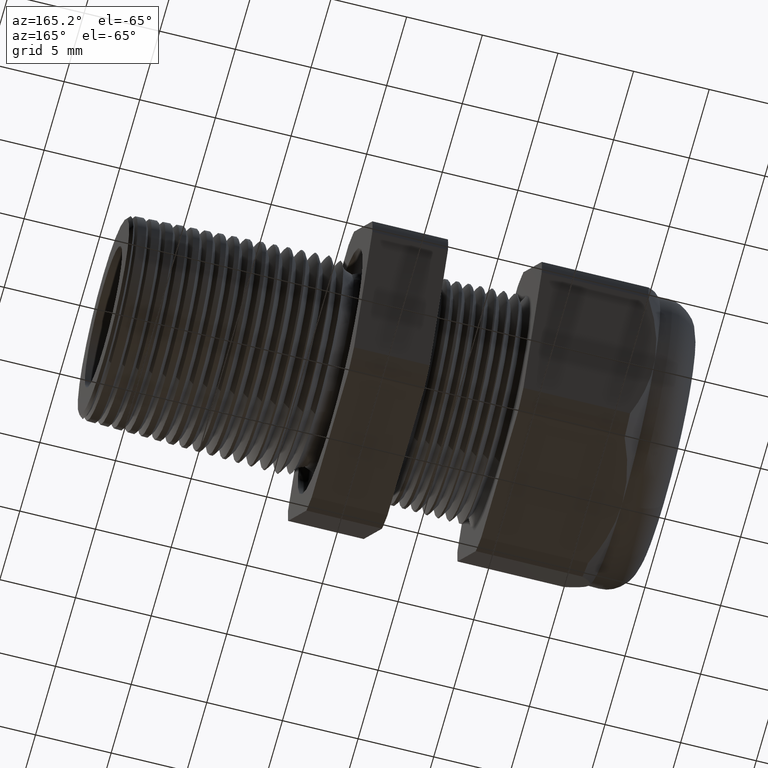
[diagram: clean part render]
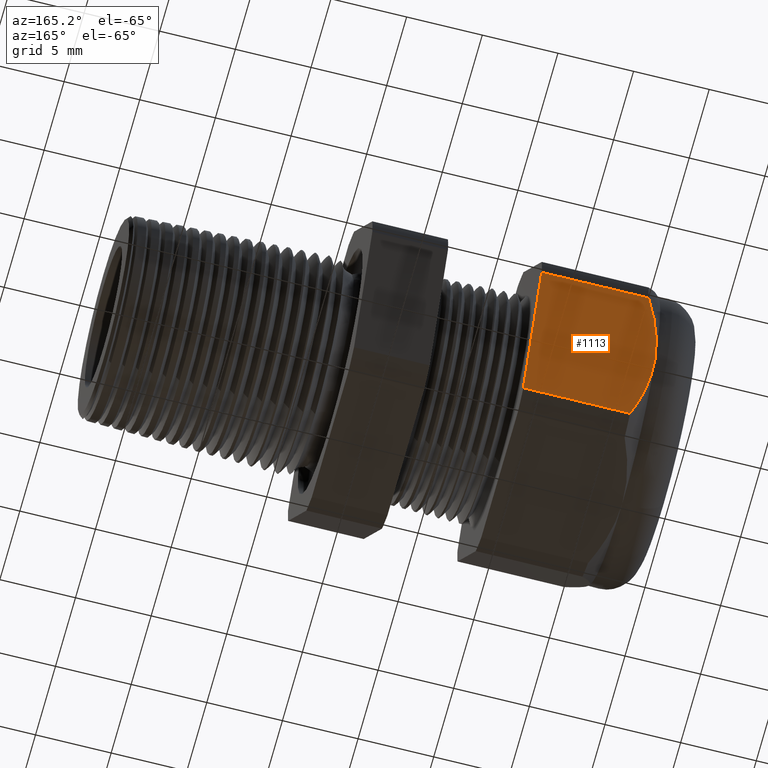
[diagram: same view with one face highlighted and labeled with its STEP entity id]
A machine part, auxiliary view. The second image highlights one B-rep face of the part: STEP entity #1113.
In plain terms, the highlighted planar face has unit normal (0, 0.866, -0.5).
Its self-contained STEP definition (entity closure, byte-faithful):
#678 = VERTEX_POINT ( 'NONE', #2939 ) ;
#1017 = EDGE_CURVE ( 'NONE', #1018, #1019, #3553, .T. ) ;
#1018 = VERTEX_POINT ( 'NONE', #3609 ) ;
#1019 = VERTEX_POINT ( 'NONE', #3608 ) ;
#1113 = ADVANCED_FACE ( 'NONE', ( #3813 ), #3812, .T. ) ;
#1114 = EDGE_LOOP ( 'NONE', ( #1115, #1116, #1118, #1120, #1121 ) ) ;
#1115 = ORIENTED_EDGE ( 'NONE', *, *, #1137, .T. ) ;
#1116 = ORIENTED_EDGE ( 'NONE', *, *, #1117, .T. ) ;
#1117 = EDGE_CURVE ( 'NONE', #1135, #678, #3807, .T. ) ;
#1118 = ORIENTED_EDGE ( 'NONE', *, *, #1119, .T. ) ;
#1119 = EDGE_CURVE ( 'NONE', #678, #1019, #3798, .T. ) ;
#1120 = ORIENTED_EDGE ( 'NONE', *, *, #1017, .F. ) ;
#1121 = ORIENTED_EDGE ( 'NONE', *, *, #1181, .F. ) ;
#1135 = VERTEX_POINT ( 'NONE', #3818 ) ;
#1137 = EDGE_CURVE ( 'NONE', #1138, #1135, #3817, .T. ) ;
#1138 = VERTEX_POINT ( 'NONE', #3871 ) ;
#1181 = EDGE_CURVE ( 'NONE', #1138, #1018, #3911, .T. ) ;
#2939 = CARTESIAN_POINT ( 'NONE',  ( -1.069763779527559200, 0.3247595264191646700, -0.1875000000000001100 ) ) ;
#3547 = VECTOR ( 'NONE', #3610, 39.37007874015748100 ) ;
#3548 = CARTESIAN_POINT ( 'NONE',  ( 0.2800000000000000300, 0.4150909474475088000, -0.03104138925901223100 ) ) ;
#3553 = LINE ( 'NONE', #3548, #3547 ) ;
#3608 = CARTESIAN_POINT ( 'NONE',  ( -1.028513779527559200, 0.4150909474475088000, -0.03104138925901223100 ) ) ;
#3609 = CARTESIAN_POINT ( 'NONE',  ( -0.7508661417322833900, 0.4150909474475088000, -0.03104138925901223400 ) ) ;
#3610 = DIRECTION ( 'NONE',  ( -1.000000000000000000, 0.0000000000000000000, 0.0000000000000000000 ) ) ;
#3792 = CARTESIAN_POINT ( 'NONE',  ( -1.028513779527559200, 0.4150909474475088000, -0.03104138925901223100 ) ) ;
#3793 = CARTESIAN_POINT ( 'NONE',  ( -1.041003202145915700, 0.4007030353962316400, -0.05596198394665684300 ) ) ;
#3794 = CARTESIAN_POINT ( 'NONE',  ( -1.051459219999150200, 0.3858321107701056500, -0.08171918095463424900 ) ) ;
#3795 = CARTESIAN_POINT ( 'NONE',  ( -1.065817769005222800, 0.3557072427410923900, -0.1338969829521926800 ) ) ;
#3796 = CARTESIAN_POINT ( 'NONE',  ( -1.069763779527558500, 0.3403893008356695900, -0.1604284365997730400 ) ) ;
#3797 = CARTESIAN_POINT ( 'NONE',  ( -1.069763779527559200, 0.3247595264191646700, -0.1875000000000001100 ) ) ;
#3798 = B_SPLINE_CURVE_WITH_KNOTS ( 'NONE', 3,
 ( #3797, #3796, #3795, #3794, #3793, #3792 ),
 .UNSPECIFIED., .F., .F.,
 ( 4, 2, 4 ),
 ( 0.004709976344604661000, 0.007063225540252132300, 0.009416474735899604500 ),
 .UNSPECIFIED. ) ;
#3799 = CARTESIAN_POINT ( 'NONE',  ( -1.069763779527559200, 0.3247595264191646700, -0.1875000000000001100 ) ) ;
#3800 = CARTESIAN_POINT ( 'NONE',  ( -1.069763779527559000, 0.3169392765875834700, -0.2010450700361805500 ) ) ;
#3801 = CARTESIAN_POINT ( 'NONE',  ( -1.068759730589041300, 0.3090355397383388000, -0.2147347438287267000 ) ) ;
#3802 = CARTESIAN_POINT ( 'NONE',  ( -1.064926254644834600, 0.2935887246993245700, -0.2414894122914183500 ) ) ;
#3803 = CARTESIAN_POINT ( 'NONE',  ( -1.062104445229485000, 0.2859780998530065400, -0.2546714012025871900 ) ) ;
#3804 = CARTESIAN_POINT ( 'NONE',  ( -1.051298346633053900, 0.2634379006963006300, -0.2937121713547227700 ) ) ;
#3805 = CARTESIAN_POINT ( 'NONE',  ( -1.040987746498826200, 0.2487982124163725400, -0.3190688552625289300 ) ) ;
#3806 = CARTESIAN_POINT ( 'NONE',  ( -1.028513779527559000, 0.2344281053908203200, -0.3439586107409879900 ) ) ;
#3807 = B_SPLINE_CURVE_WITH_KNOTS ( 'NONE', 3,
 ( #3806, #3805, #3804, #3803, #3802, #3801, #3800, #3799 ),
 .UNSPECIFIED., .F., .F.,
 ( 4, 2, 2, 4 ),
 ( 2.483253706007067000E-007, 0.002355112334987630900, 0.003532544339796146000, 0.004709976344604661000 ),
 .UNSPECIFIED. ) ;
#3808 = DIRECTION ( 'NONE',  ( 0.0000000000000000000, 0.5000000000000000000, 0.8660254037844386000 ) ) ;
#3809 = DIRECTION ( 'NONE',  ( 0.0000000000000000000, 0.8660254037844387100, -0.5000000000000001100 ) ) ;
#3810 = CARTESIAN_POINT ( 'NONE',  ( 0.2800000000000000300, 0.4150909474475088000, -0.03104138925901223100 ) ) ;
#3811 = AXIS2_PLACEMENT_3D ( 'NONE', #3810, #3809, #3808 ) ;
#3812 = PLANE ( 'NONE',  #3811 ) ;
#3813 = FACE_OUTER_BOUND ( 'NONE', #1114, .T. ) ;
#3814 = DIRECTION ( 'NONE',  ( -1.000000000000000000, 0.0000000000000000000, 0.0000000000000000000 ) ) ;
#3815 = VECTOR ( 'NONE', #3814, 39.37007874015748100 ) ;
#3816 = CARTESIAN_POINT ( 'NONE',  ( 0.2800000000000000300, 0.2344281053908202900, -0.3439586107409879900 ) ) ;
#3817 = LINE ( 'NONE', #3816, #3815 ) ;
#3818 = CARTESIAN_POINT ( 'NONE',  ( -1.028513779527559000, 0.2344281053908203200, -0.3439586107409879900 ) ) ;
#3871 = CARTESIAN_POINT ( 'NONE',  ( -0.7508661417322833900, 0.2344281053908202900, -0.3439586107409879900 ) ) ;
#3908 = DIRECTION ( 'NONE',  ( 0.0000000000000000000, 0.5000000000000000000, 0.8660254037844386000 ) ) ;
#3909 = VECTOR ( 'NONE', #3908, 39.37007874015748900 ) ;
#3910 = CARTESIAN_POINT ( 'NONE',  ( -0.7508661417322833900, 0.3997595264191645700, -0.05759618943233427900 ) ) ;
#3911 = LINE ( 'NONE', #3910, #3909 ) ;